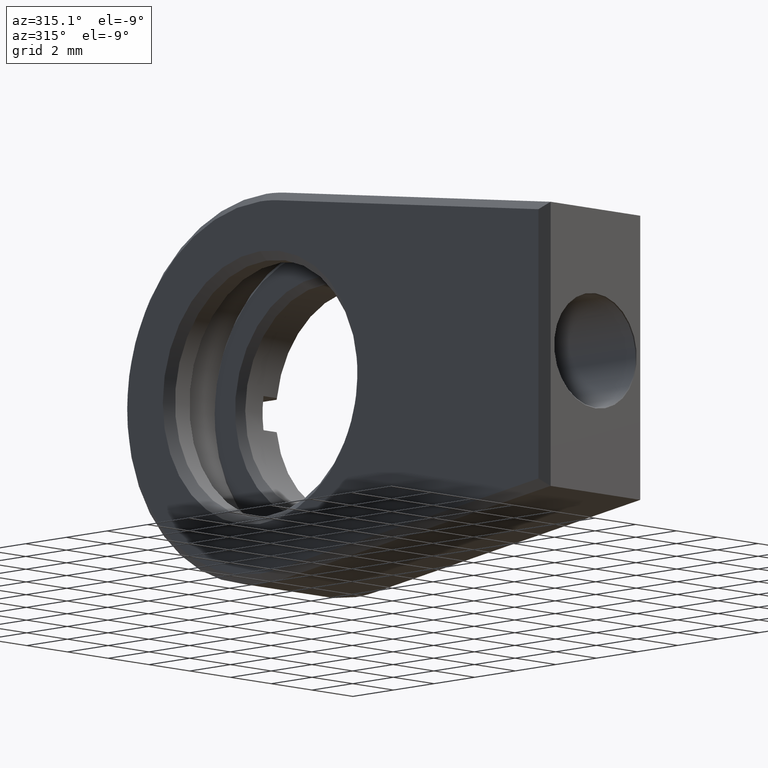
[diagram: clean part render]
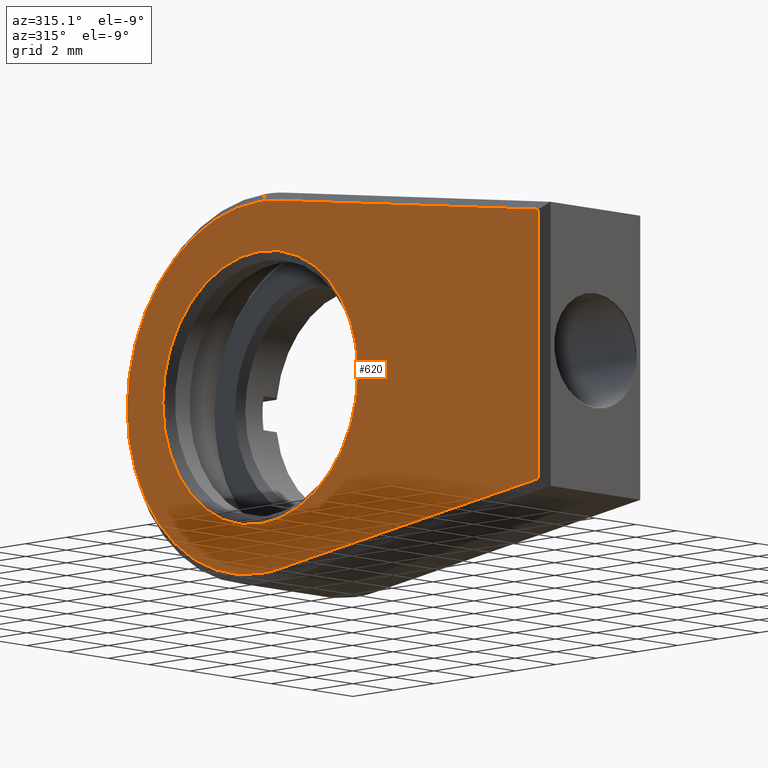
[diagram: same view with one face highlighted and labeled with its STEP entity id]
A machine part, auxiliary view. The second image highlights one B-rep face of the part: STEP entity #620.
In plain terms, the highlighted planar face has unit normal (1, 0, 0).
Its self-contained STEP definition (entity closure, byte-faithful):
#55 = ORIENTED_EDGE ( 'NONE', *, *, #819, .T. ) ;
#69 = CARTESIAN_POINT ( 'NONE',  ( -2.500000000000000000, 0.0000000000000000000, 0.0000000000000000000 ) ) ;
#79 = AXIS2_PLACEMENT_3D ( 'NONE', #69, #1696, #742 ) ;
#107 = EDGE_LOOP ( 'NONE', ( #877, #1235 ) ) ;
#122 = ORIENTED_EDGE ( 'NONE', *, *, #1089, .T. ) ;
#127 = CARTESIAN_POINT ( 'NONE',  ( -2.500000000000000000, -0.8870888379958404846, 6.489651253611639525 ) ) ;
#139 = EDGE_CURVE ( 'NONE', #1631, #618, #636, .T. ) ;
#144 = DIRECTION ( 'NONE',  ( 1.000000000000000000, 0.0000000000000000000, 0.0000000000000000000 ) ) ;
#154 = CARTESIAN_POINT ( 'NONE',  ( -2.500000000000000000, -13.69999999999999929, 4.738218082573262713 ) ) ;
#182 = CARTESIAN_POINT ( 'NONE',  ( -2.500000000000000000, -13.69999999999999929, -2.376571162088225325E-15 ) ) ;
#233 = VERTEX_POINT ( 'NONE', #1638 ) ;
#279 = CARTESIAN_POINT ( 'NONE',  ( -2.500000000000000000, -0.8870888379958388192, -6.489651253611638637 ) ) ;
#317 = LINE ( 'NONE', #182, #954 ) ;
#352 = CARTESIAN_POINT ( 'NONE',  ( -2.500000000000000000, 0.0000000000000000000, -6.549999999999995381 ) ) ;
#392 = CARTESIAN_POINT ( 'NONE',  ( -2.500000000000000000, 0.0000000000000000000, 0.0000000000000000000 ) ) ;
#410 = CARTESIAN_POINT ( 'NONE',  ( -2.500000000000000000, -13.69999999999999751, -4.738218082573266265 ) ) ;
#417 = DIRECTION ( 'NONE',  ( 0.0000000000000000000, -0.9907864509330756020, 0.1354334103810442558 ) ) ;
#470 = AXIS2_PLACEMENT_3D ( 'NONE', #476, #645, #760 ) ;
#471 = VECTOR ( 'NONE', #417, 999.9999999999998863 ) ;
#476 = CARTESIAN_POINT ( 'NONE',  ( -2.500000000000000000, 0.0000000000000000000, 0.0000000000000000000 ) ) ;
#515 = CARTESIAN_POINT ( 'NONE',  ( -2.500000000000000000, 0.0000000000000000000, 0.0000000000000000000 ) ) ;
#540 = EDGE_CURVE ( 'NONE', #687, #1341, #1467, .T. ) ;
#550 = DIRECTION ( 'NONE',  ( 0.0000000000000000000, 0.0000000000000000000, -1.000000000000000000 ) ) ;
#553 = DIRECTION ( 'NONE',  ( 0.0000000000000000000, 0.0000000000000000000, -1.000000000000000000 ) ) ;
#618 = VERTEX_POINT ( 'NONE', #1494 ) ;
#620 = ADVANCED_FACE ( 'NONE', ( #1661, #976 ), #696, .F. ) ;
#631 = VERTEX_POINT ( 'NONE', #154 ) ;
#636 = CIRCLE ( 'NONE', #1558, 6.549999999999995381 ) ;
#640 = CIRCLE ( 'NONE', #470, 6.549999999999995381 ) ;
#645 = DIRECTION ( 'NONE',  ( -1.000000000000000000, -0.0000000000000000000, -0.0000000000000000000 ) ) ;
#668 = VERTEX_POINT ( 'NONE', #410 ) ;
#687 = VERTEX_POINT ( 'NONE', #1086 ) ;
#693 = LINE ( 'NONE', #279, #471 ) ;
#696 = PLANE ( 'NONE',  #870 ) ;
#701 = VERTEX_POINT ( 'NONE', #127 ) ;
#742 = DIRECTION ( 'NONE',  ( 0.0000000000000000000, 1.065814103640150437E-14, -1.000000000000000000 ) ) ;
#760 = DIRECTION ( 'NONE',  ( 0.0000000000000000000, 0.0000000000000000000, -1.000000000000000000 ) ) ;
#819 = EDGE_CURVE ( 'NONE', #668, #631, #317, .T. ) ;
#825 = ORIENTED_EDGE ( 'NONE', *, *, #944, .T. ) ;
#870 = AXIS2_PLACEMENT_3D ( 'NONE', #392, #1522, #553 ) ;
#877 = ORIENTED_EDGE ( 'NONE', *, *, #540, .T. ) ;
#878 = DIRECTION ( 'NONE',  ( 0.0000000000000000000, -1.734723475976807094E-16, 1.000000000000000000 ) ) ;
#882 = EDGE_CURVE ( 'NONE', #233, #1631, #640, .T. ) ;
#912 = LINE ( 'NONE', #1298, #1592 ) ;
#944 = EDGE_CURVE ( 'NONE', #631, #701, #912, .T. ) ;
#954 = VECTOR ( 'NONE', #878, 1000.000000000000000 ) ;
#975 = ORIENTED_EDGE ( 'NONE', *, *, #1508, .T. ) ;
#976 = FACE_BOUND ( 'NONE', #107, .T. ) ;
#996 = ORIENTED_EDGE ( 'NONE', *, *, #139, .T. ) ;
#1081 = CARTESIAN_POINT ( 'NONE',  ( -2.500000000000000000, 0.0000000000000000000, 0.0000000000000000000 ) ) ;
#1086 = CARTESIAN_POINT ( 'NONE',  ( -2.500000000000000000, 0.0000000000000000000, 4.799999999999997158 ) ) ;
#1089 = EDGE_CURVE ( 'NONE', #618, #668, #693, .T. ) ;
#1106 = CIRCLE ( 'NONE', #79, 6.549999999999995381 ) ;
#1127 = AXIS2_PLACEMENT_3D ( 'NONE', #515, #1450, #1583 ) ;
#1158 = EDGE_CURVE ( 'NONE', #1341, #687, #1732, .T. ) ;
#1235 = ORIENTED_EDGE ( 'NONE', *, *, #1158, .T. ) ;
#1285 = DIRECTION ( 'NONE',  ( -1.000000000000000000, -0.0000000000000000000, -0.0000000000000000000 ) ) ;
#1298 = CARTESIAN_POINT ( 'NONE',  ( -2.500000000000000000, -0.8870888379958405956, 6.489651253611639525 ) ) ;
#1315 = CARTESIAN_POINT ( 'NONE',  ( -2.500000000000000000, 5.878304635907292239E-16, -4.799999999999997158 ) ) ;
#1341 = VERTEX_POINT ( 'NONE', #1315 ) ;
#1368 = CARTESIAN_POINT ( 'NONE',  ( -2.500000000000000000, 0.0000000000000000000, 0.0000000000000000000 ) ) ;
#1450 = DIRECTION ( 'NONE',  ( 1.000000000000000000, 0.0000000000000000000, 0.0000000000000000000 ) ) ;
#1463 = DIRECTION ( 'NONE',  ( 0.0000000000000000000, 0.9907864509330754910, 0.1354334103810444778 ) ) ;
#1467 = CIRCLE ( 'NONE', #1127, 4.799999999999997158 ) ;
#1470 = DIRECTION ( 'NONE',  ( 0.0000000000000000000, 0.0000000000000000000, -1.000000000000000000 ) ) ;
#1477 = ORIENTED_EDGE ( 'NONE', *, *, #882, .T. ) ;
#1494 = CARTESIAN_POINT ( 'NONE',  ( -2.500000000000000000, -0.8870888379958388192, -6.489651253611639525 ) ) ;
#1508 = EDGE_CURVE ( 'NONE', #701, #233, #1106, .T. ) ;
#1522 = DIRECTION ( 'NONE',  ( 1.000000000000000000, 0.0000000000000000000, 0.0000000000000000000 ) ) ;
#1558 = AXIS2_PLACEMENT_3D ( 'NONE', #1081, #1285, #1470 ) ;
#1583 = DIRECTION ( 'NONE',  ( 0.0000000000000000000, 0.0000000000000000000, -1.000000000000000000 ) ) ;
#1592 = VECTOR ( 'NONE', #1463, 1000.000000000000000 ) ;
#1631 = VERTEX_POINT ( 'NONE', #352 ) ;
#1638 = CARTESIAN_POINT ( 'NONE',  ( -2.500000000000000000, 8.205133554287262618E-16, 6.549999999999995381 ) ) ;
#1661 = FACE_OUTER_BOUND ( 'NONE', #1685, .T. ) ;
#1685 = EDGE_LOOP ( 'NONE', ( #122, #55, #825, #975, #1477, #996 ) ) ;
#1696 = DIRECTION ( 'NONE',  ( -1.000000000000000000, -0.0000000000000000000, -0.0000000000000000000 ) ) ;
#1705 = AXIS2_PLACEMENT_3D ( 'NONE', #1368, #144, #550 ) ;
#1732 = CIRCLE ( 'NONE', #1705, 4.799999999999997158 ) ;